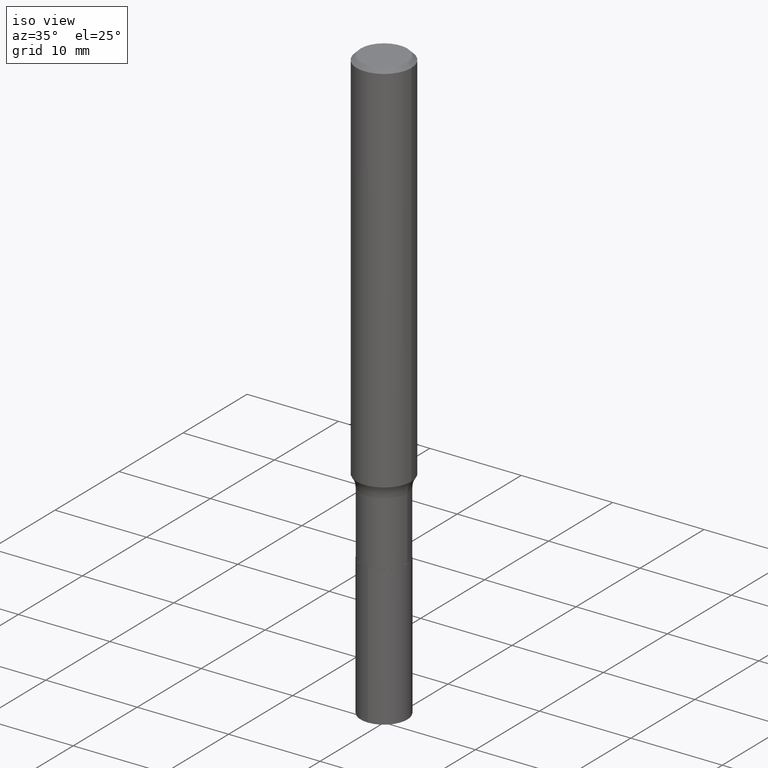
[diagram: clean part render]
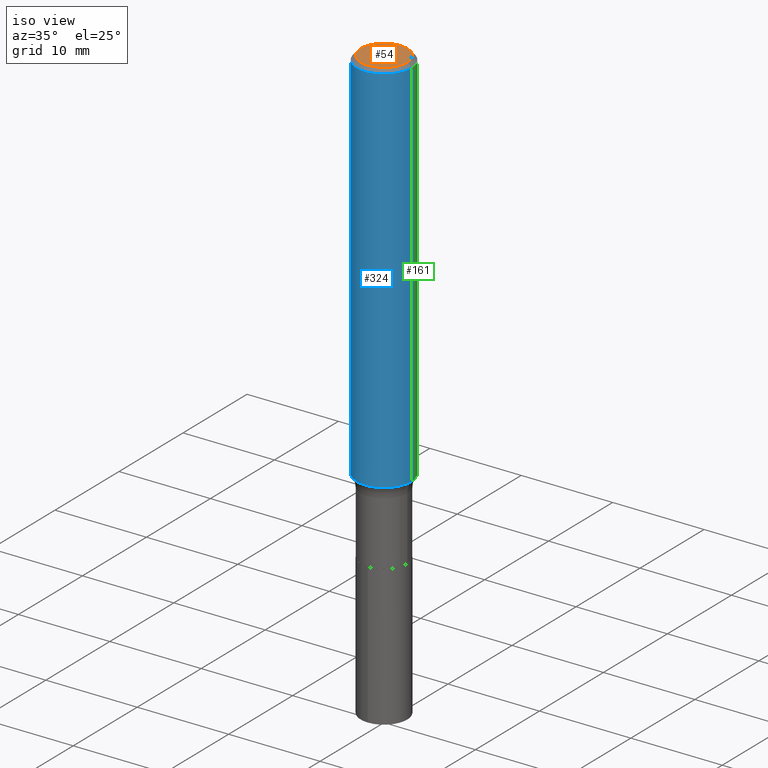
[diagram: same view with three faces highlighted in distinct colors, each labeled with its STEP entity id]
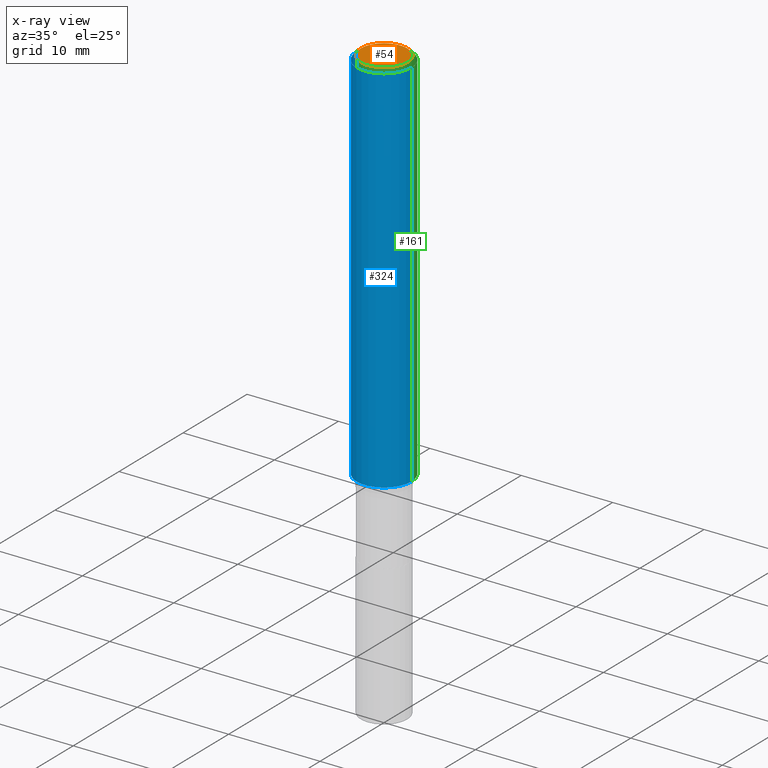
[diagram: x-ray of the same camera — body ghosted, the three highlighted faces saturated]
A machine part, iso view with three faces highlighted in distinct colors.
The next image is the same camera in x-ray (body ghosted, the three faces saturated) — at least one of them is partly hidden behind the body in this view.
Their STEP definitions:

[orange] entity #54 — the highlighted planar face has unit normal (0, -0, -1).
#17 = CIRCLE ( 'NONE', #244, 0.1003850000000000159 ) ;
#54 = ADVANCED_FACE ( 'NONE', ( #193 ), #157, .F. ) ;
#64 = DIRECTION ( 'NONE',  ( 2.438088387897960049E-29, -3.491481338843145188E-15, -1.000000000000000000 ) ) ;
#79 = VERTEX_POINT ( 'NONE', #237 ) ;
#82 = CARTESIAN_POINT ( 'NONE',  ( -0.1003850000000000159, 7.319105043583386689E-16, -2.868857591683090262E-17 ) ) ;
#85 = CARTESIAN_POINT ( 'NONE',  ( 7.015701749847187307E-46, -1.001656274515824970E-31, -2.868857591682589212E-17 ) ) ;
#150 = DIRECTION ( 'NONE',  ( -2.445468806185136597E-29, 3.491481338843145583E-15, 1.000000000000000000 ) ) ;
#157 = PLANE ( 'NONE',  #357 ) ;
#184 = DIRECTION ( 'NONE',  ( 1.000000000000000000, -6.982962677686266711E-15, 4.875668750515085695E-29 ) ) ;
#193 = FACE_OUTER_BOUND ( 'NONE', #447, .T. ) ;
#237 = CARTESIAN_POINT ( 'NONE',  ( 0.1003850000000000159, -7.803837484803599345E-16, -2.868857591682071522E-17 ) ) ;
#244 = AXIS2_PLACEMENT_3D ( 'NONE', #290, #401, #360 ) ;
#245 = DIRECTION ( 'NONE',  ( -1.000000000000000000, 6.982962677686265922E-15, -4.876176775795935793E-29 ) ) ;
#247 = EDGE_CURVE ( 'NONE', #79, #301, #392, .T. ) ;
#256 = EDGE_CURVE ( 'NONE', #301, #79, #17, .T. ) ;
#268 = AXIS2_PLACEMENT_3D ( 'NONE', #85, #150, #184 ) ;
#290 = CARTESIAN_POINT ( 'NONE',  ( 7.015701749847187307E-46, -1.001656274515824970E-31, -2.868857591682589212E-17 ) ) ;
#301 = VERTEX_POINT ( 'NONE', #82 ) ;
#317 = ORIENTED_EDGE ( 'NONE', *, *, #247, .T. ) ;
#327 = ORIENTED_EDGE ( 'NONE', *, *, #256, .T. ) ;
#357 = AXIS2_PLACEMENT_3D ( 'NONE', #424, #64, #245 ) ;
#360 = DIRECTION ( 'NONE',  ( 1.000000000000000000, -6.982962677686266711E-15, 4.875668750515085695E-29 ) ) ;
#392 = CIRCLE ( 'NONE', #268, 0.1003850000000000159 ) ;
#401 = DIRECTION ( 'NONE',  ( -2.445468806185136597E-29, 3.491481338843145583E-15, 1.000000000000000000 ) ) ;
#424 = CARTESIAN_POINT ( 'NONE',  ( 3.507850874923593654E-46, -5.008281372579124849E-32, -1.434428795841294606E-17 ) ) ;
#447 = EDGE_LOOP ( 'NONE', ( #327, #317 ) ) ;

[blue] entity #324 — the highlighted cylindrical surface (edge-blend (fillet) strip) has radius 2.9997 mm, axis along (-0, 0, 1).
#2 = AXIS2_PLACEMENT_3D ( 'NONE', #388, #211, #313 ) ;
#13 = DIRECTION ( 'NONE',  ( -2.445468806185136877E-29, 3.491481338843145188E-15, 1.000000000000000000 ) ) ;
#47 = DIRECTION ( 'NONE',  ( -2.445468806185136597E-29, 3.491481338843145583E-15, 1.000000000000000000 ) ) ;
#70 = CIRCLE ( 'NONE', #319, 0.1180999999999999966 ) ;
#71 = CARTESIAN_POINT ( 'NONE',  ( 0.1181000000000002048, -6.508167473402816070E-15, -1.627813248760255238 ) ) ;
#83 = VERTEX_POINT ( 'NONE', #381 ) ;
#88 = DIRECTION ( 'NONE',  ( -2.445468806185136877E-29, 3.491481338843145188E-15, 1.000000000000000000 ) ) ;
#90 = FACE_OUTER_BOUND ( 'NONE', #294, .T. ) ;
#93 = CARTESIAN_POINT ( 'NONE',  ( 0.000000000000000000, 0.000000000000000000, 0.000000000000000000 ) ) ;
#100 = ORIENTED_EDGE ( 'NONE', *, *, #196, .T. ) ;
#112 = LINE ( 'NONE', #134, #435 ) ;
#128 = AXIS2_PLACEMENT_3D ( 'NONE', #93, #47, #228 ) ;
#134 = CARTESIAN_POINT ( 'NONE',  ( 0.1181000000000001077, -8.246878922347488542E-16, 5.758764772215005345E-30 ) ) ;
#158 = CARTESIAN_POINT ( 'NONE',  ( -0.1180999999999999966, -2.033514615610156045E-15, -0.01771500000000011260 ) ) ;
#159 = LINE ( 'NONE', #370, #236 ) ;
#160 = VERTEX_POINT ( 'NONE', #241 ) ;
#164 = VERTEX_POINT ( 'NONE', #71 ) ;
#196 = EDGE_CURVE ( 'NONE', #160, #164, #375, .T. ) ;
#201 = CARTESIAN_POINT ( 'NONE',  ( 4.332147990156996744E-31, -6.185159191760671627E-17, -0.01771500000000011260 ) ) ;
#211 = DIRECTION ( 'NONE',  ( -2.445468806185136597E-29, 3.491481338843145583E-15, 1.000000000000000000 ) ) ;
#225 = CYLINDRICAL_SURFACE ( 'NONE', #128, 0.1181000000000001077 ) ;
#228 = DIRECTION ( 'NONE',  ( 1.000000000000000000, -6.982962677686266711E-15, 4.876176775795935793E-29 ) ) ;
#236 = VECTOR ( 'NONE', #88, 39.37007874015748143 ) ;
#241 = CARTESIAN_POINT ( 'NONE',  ( -0.1181000000000002048, -4.844328610235386455E-15, -1.627813248760255238 ) ) ;
#253 = ORIENTED_EDGE ( 'NONE', *, *, #432, .T. ) ;
#294 = EDGE_LOOP ( 'NONE', ( #406, #100, #253, #300 ) ) ;
#300 = ORIENTED_EDGE ( 'NONE', *, *, #320, .F. ) ;
#313 = DIRECTION ( 'NONE',  ( 1.000000000000000000, -6.982962677686268288E-15, 0.000000000000000000 ) ) ;
#319 = AXIS2_PLACEMENT_3D ( 'NONE', #201, #405, #407 ) ;
#320 = EDGE_CURVE ( 'NONE', #443, #83, #70, .T. ) ;
#324 = ADVANCED_FACE ( 'NONE', ( #90 ), #225, .T. ) ;
#369 = EDGE_CURVE ( 'NONE', #160, #443, #159, .T. ) ;
#370 = CARTESIAN_POINT ( 'NONE',  ( -0.1181000000000001077, 8.391509709326790846E-16, -5.809262341591049389E-30 ) ) ;
#375 = CIRCLE ( 'NONE', #2, 0.1181000000000002048 ) ;
#381 = CARTESIAN_POINT ( 'NONE',  ( 0.1180999999999999966, -8.865394841523547570E-16, -0.01771500000000011260 ) ) ;
#388 = CARTESIAN_POINT ( 'NONE',  ( 3.980766522138090197E-29, -5.683479581168066230E-15, -1.627813248760255238 ) ) ;
#405 = DIRECTION ( 'NONE',  ( -2.445468806185136597E-29, 3.491481338843145583E-15, 1.000000000000000000 ) ) ;
#406 = ORIENTED_EDGE ( 'NONE', *, *, #369, .F. ) ;
#407 = DIRECTION ( 'NONE',  ( 1.000000000000000000, -6.982962677686266711E-15, 0.000000000000000000 ) ) ;
#432 = EDGE_CURVE ( 'NONE', #164, #83, #112, .T. ) ;
#435 = VECTOR ( 'NONE', #13, 39.37007874015748143 ) ;
#443 = VERTEX_POINT ( 'NONE', #158 ) ;

[green] entity #161 — the highlighted cylindrical surface (edge-blend (fillet) strip) has radius 2.9997 mm, axis along (-0, 0, 1).
#13 = DIRECTION ( 'NONE',  ( -2.445468806185136877E-29, 3.491481338843145188E-15, 1.000000000000000000 ) ) ;
#15 = ORIENTED_EDGE ( 'NONE', *, *, #168, .T. ) ;
#28 = DIRECTION ( 'NONE',  ( 1.000000000000000000, -6.982962677686266711E-15, 4.876176775795935793E-29 ) ) ;
#71 = CARTESIAN_POINT ( 'NONE',  ( 0.1181000000000002048, -6.508167473402816070E-15, -1.627813248760255238 ) ) ;
#73 = DIRECTION ( 'NONE',  ( 1.000000000000000000, -6.982962677686268288E-15, 0.000000000000000000 ) ) ;
#83 = VERTEX_POINT ( 'NONE', #381 ) ;
#86 = EDGE_LOOP ( 'NONE', ( #15, #273, #179, #151 ) ) ;
#88 = DIRECTION ( 'NONE',  ( -2.445468806185136877E-29, 3.491481338843145188E-15, 1.000000000000000000 ) ) ;
#112 = LINE ( 'NONE', #134, #435 ) ;
#123 = DIRECTION ( 'NONE',  ( -2.445468806185136597E-29, 3.491481338843145583E-15, 1.000000000000000000 ) ) ;
#134 = CARTESIAN_POINT ( 'NONE',  ( 0.1181000000000001077, -8.246878922347488542E-16, 5.758764772215005345E-30 ) ) ;
#136 = CARTESIAN_POINT ( 'NONE',  ( 0.000000000000000000, 0.000000000000000000, 0.000000000000000000 ) ) ;
#143 = CARTESIAN_POINT ( 'NONE',  ( 4.332147990156996744E-31, -6.185159191760671627E-17, -0.01771500000000011260 ) ) ;
#151 = ORIENTED_EDGE ( 'NONE', *, *, #432, .F. ) ;
#158 = CARTESIAN_POINT ( 'NONE',  ( -0.1180999999999999966, -2.033514615610156045E-15, -0.01771500000000011260 ) ) ;
#159 = LINE ( 'NONE', #370, #236 ) ;
#160 = VERTEX_POINT ( 'NONE', #241 ) ;
#161 = ADVANCED_FACE ( 'NONE', ( #425 ), #206, .T. ) ;
#164 = VERTEX_POINT ( 'NONE', #71 ) ;
#168 = EDGE_CURVE ( 'NONE', #164, #160, #208, .T. ) ;
#170 = AXIS2_PLACEMENT_3D ( 'NONE', #143, #123, #263 ) ;
#172 = CARTESIAN_POINT ( 'NONE',  ( 3.980766522138090197E-29, -5.683479581168066230E-15, -1.627813248760255238 ) ) ;
#179 = ORIENTED_EDGE ( 'NONE', *, *, #419, .F. ) ;
#204 = DIRECTION ( 'NONE',  ( -2.445468806185136597E-29, 3.491481338843145583E-15, 1.000000000000000000 ) ) ;
#206 = CYLINDRICAL_SURFACE ( 'NONE', #434, 0.1181000000000001077 ) ;
#208 = CIRCLE ( 'NONE', #297, 0.1181000000000002048 ) ;
#236 = VECTOR ( 'NONE', #88, 39.37007874015748143 ) ;
#241 = CARTESIAN_POINT ( 'NONE',  ( -0.1181000000000002048, -4.844328610235386455E-15, -1.627813248760255238 ) ) ;
#263 = DIRECTION ( 'NONE',  ( 1.000000000000000000, -6.982962677686266711E-15, 0.000000000000000000 ) ) ;
#273 = ORIENTED_EDGE ( 'NONE', *, *, #369, .T. ) ;
#297 = AXIS2_PLACEMENT_3D ( 'NONE', #172, #204, #73 ) ;
#369 = EDGE_CURVE ( 'NONE', #160, #443, #159, .T. ) ;
#370 = CARTESIAN_POINT ( 'NONE',  ( -0.1181000000000001077, 8.391509709326790846E-16, -5.809262341591049389E-30 ) ) ;
#381 = CARTESIAN_POINT ( 'NONE',  ( 0.1180999999999999966, -8.865394841523547570E-16, -0.01771500000000011260 ) ) ;
#382 = DIRECTION ( 'NONE',  ( -2.445468806185136597E-29, 3.491481338843145583E-15, 1.000000000000000000 ) ) ;
#402 = CIRCLE ( 'NONE', #170, 0.1180999999999999966 ) ;
#419 = EDGE_CURVE ( 'NONE', #83, #443, #402, .T. ) ;
#425 = FACE_OUTER_BOUND ( 'NONE', #86, .T. ) ;
#432 = EDGE_CURVE ( 'NONE', #164, #83, #112, .T. ) ;
#434 = AXIS2_PLACEMENT_3D ( 'NONE', #136, #382, #28 ) ;
#435 = VECTOR ( 'NONE', #13, 39.37007874015748143 ) ;
#443 = VERTEX_POINT ( 'NONE', #158 ) ;